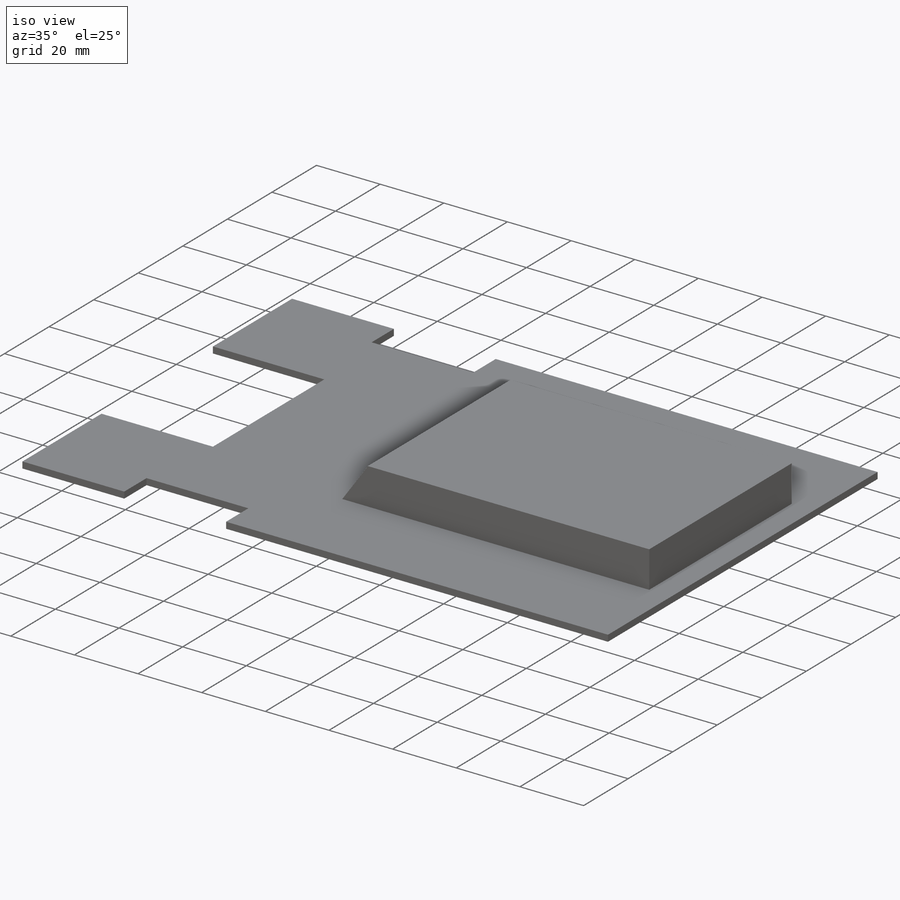
[diagram: iso view]
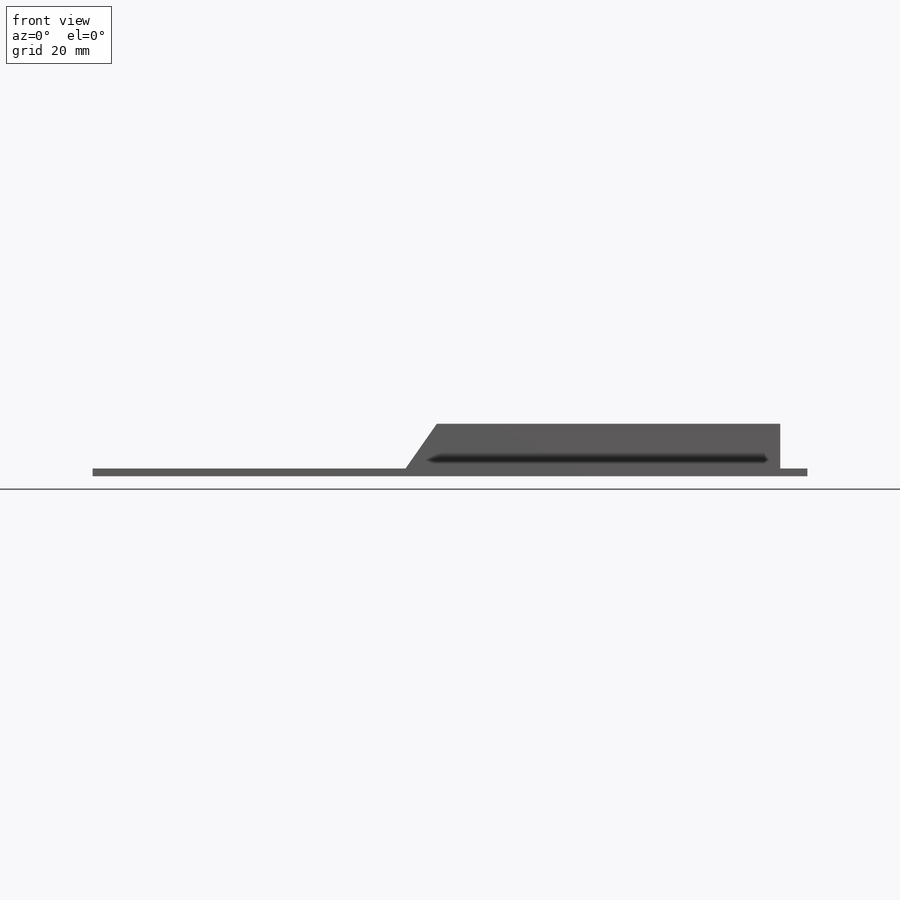
[diagram: front view]
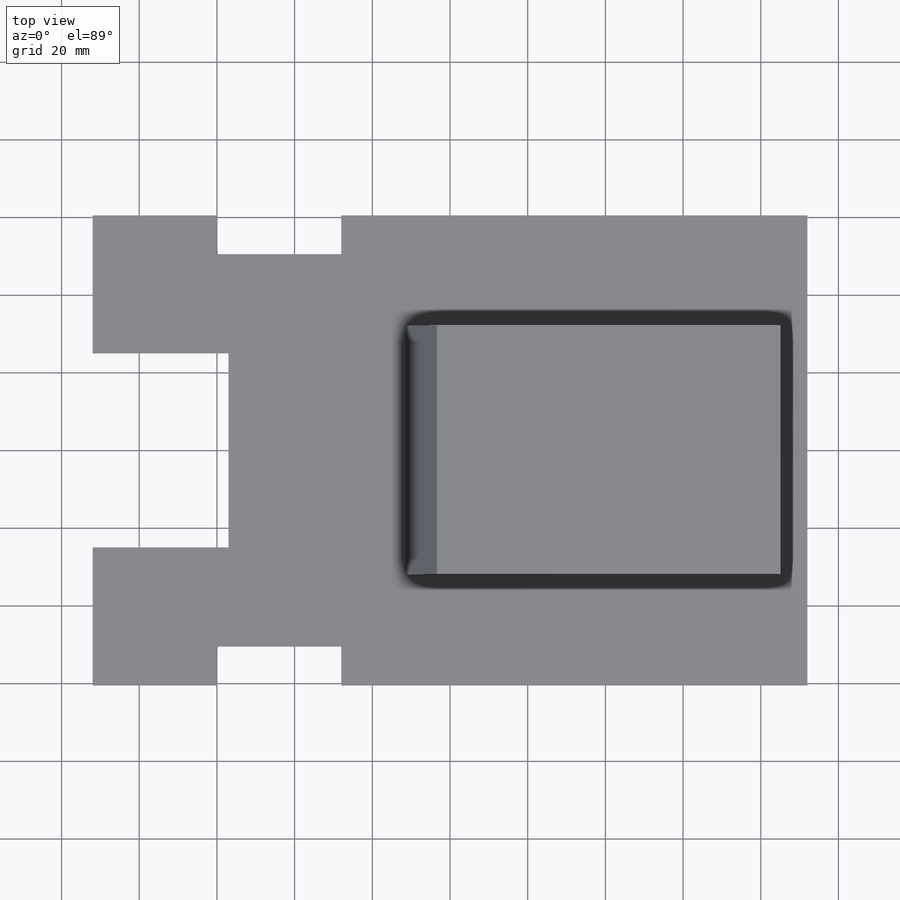
[diagram: top view]
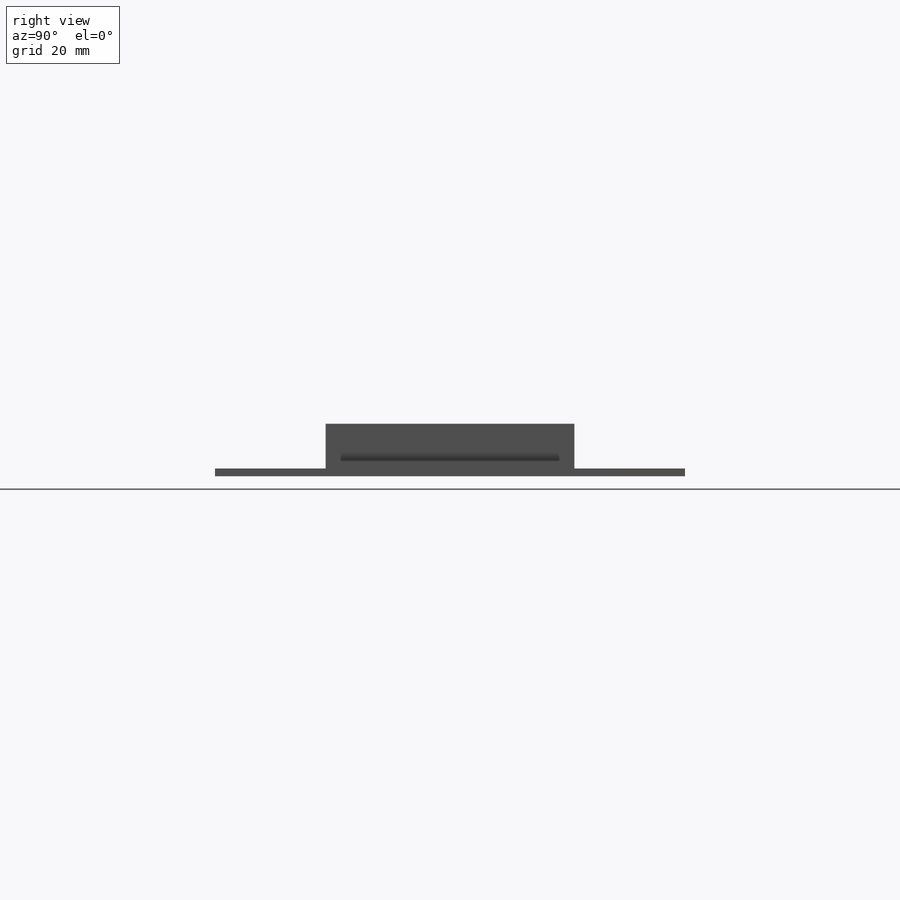
[diagram: right view]
SOLIDWORKS PART (.sldprt)
format: sldprt  version: not decoded by parser v0  size: 448,512 bytes
history: native  units: mm
features: sketch x11, cut_extrude x6, extrude x5, plane x3, material x1, pattern_linear x1 (+10 scaffold rows collapsed)
feature tree (37):
  scaffold x10  (default folders/planes/origin — collapsed)
  material  "uhlíková ocel 7850"
  plane  "Přední rovina"
  plane  "Horní rovina"
  plane  "Pravá rovina"
  sketch  "Skica1"  dims[D1=121.0mm D2=184.0mm]
  extrude  "Přidat vysunutím1"  Depth=2mm
  sketch  "Skica2"  dims[c1.D1=92.0mm c1.D2=32.0mm c1.D3=10.0mm c2.D1=32.0mm]
  cut_extrude  "Odebrat vysunutím1"  Depth=3mm
  sketch  "Skica3"  dims[D1=35.5mm D2=35.5mm D3=35.0mm]
  cut_extrude  "Odebrat vysunutím2"  Depth=10mm
  sketch  "Skica5"  dims[D1=60.0mm D2=90.0mm D3=50.0mm]
  cut_extrude  "Odebrat vysunutím3"  Depth=10mm
  sketch  "Skica6"  dims[D1=2.0mm D2=2.0mm D3=2.0mm D4=2.0mm]
  extrude  "Přidat vysunutím2"  Depth=10mm
  sketch  "Skica7"  dims[c1.D1=~6.309228mm c2.D1=55.0deg]
  cut_extrude  "Odebrat vysunutím4"  [1 undecoded]
  sketch  "Skica8"  dims[D1=2.0mm]
  extrude  "Přidat vysunutím3"  [1 undecoded]
  sketch  "Skica9"
  extrude  "Přidat vysunutím4"  Depth=1.5mm
  sketch  "Skica10"
  cut_extrude  "Odebrat vysunutím5"  [1 undecoded]
  sketch  "Skica11"  dims[D1=0.0mm]
  extrude  "Přidat vysunutím5"  Depth=1.5mm
  pattern_linear  "LinPole1"  Count1=2 Count2=2 Spacing1=15mm Spacing2=15mm
  sketch  "Skica12"  dims[D1=1.0mm D2=1.0mm D3=1.0mm D4=8.0mm D5=5.0mm D6=5.0mm D7=15.0mm D8=25.0mm D9=25.0mm]
  cut_extrude  "Odebrat vysunutím6"  [1 undecoded]
decode coverage: 17 of 23 modeling features carry decoded parameters
note: ~ marks probable driven/reference dimensions
note: 4 parameter values undecoded
summary: no parameter record found for 4 features
note: suppression state not decoded; provenance and decode notes live in map.json
